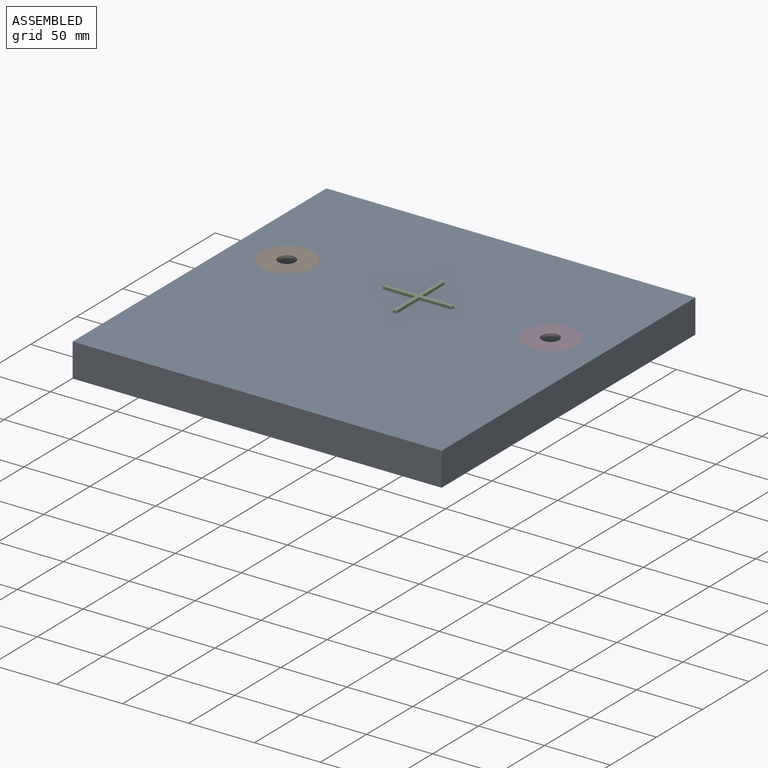
[diagram: assembled view]
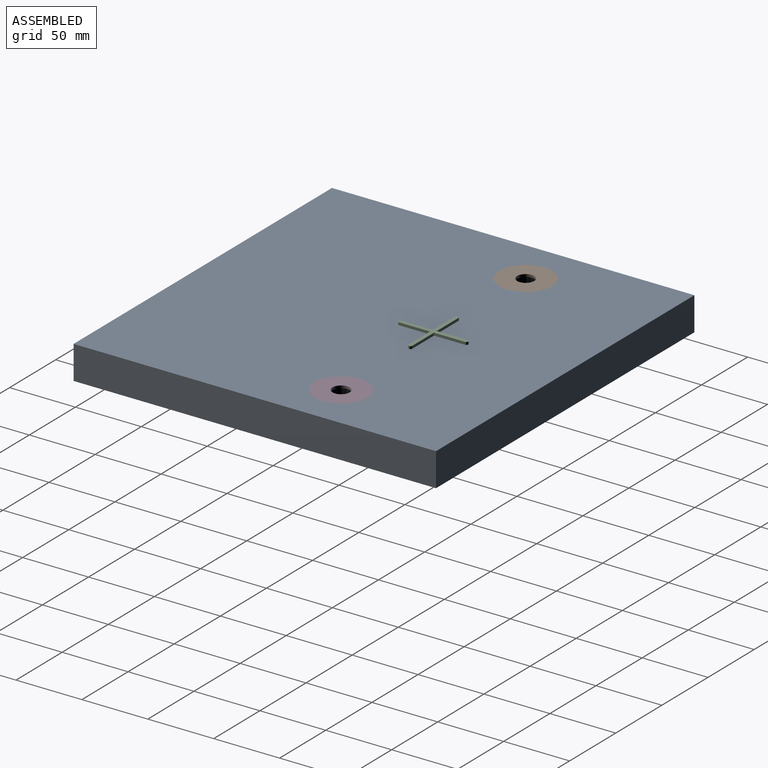
[diagram: assembled view, second angle]
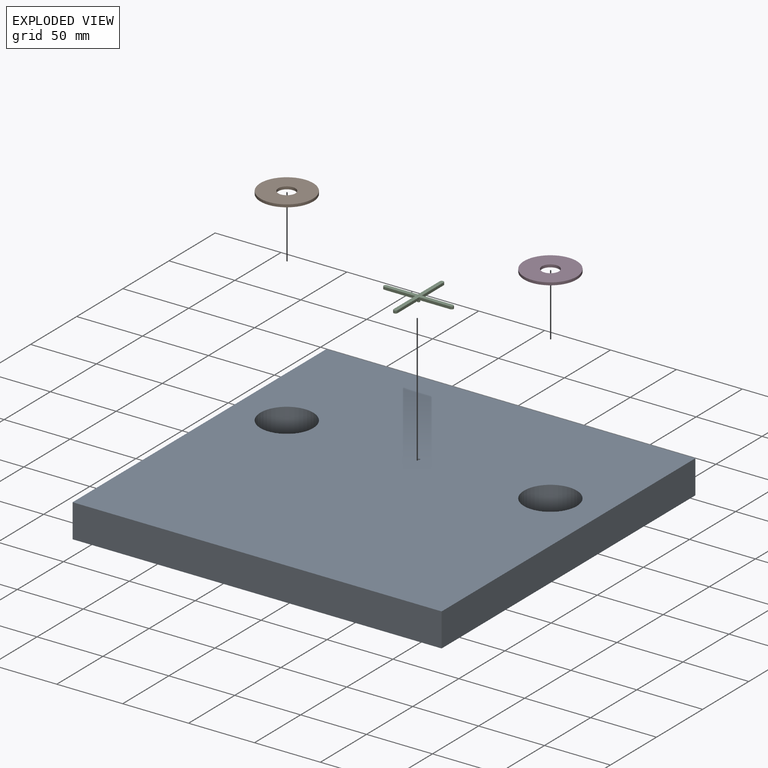
[diagram: exploded view]
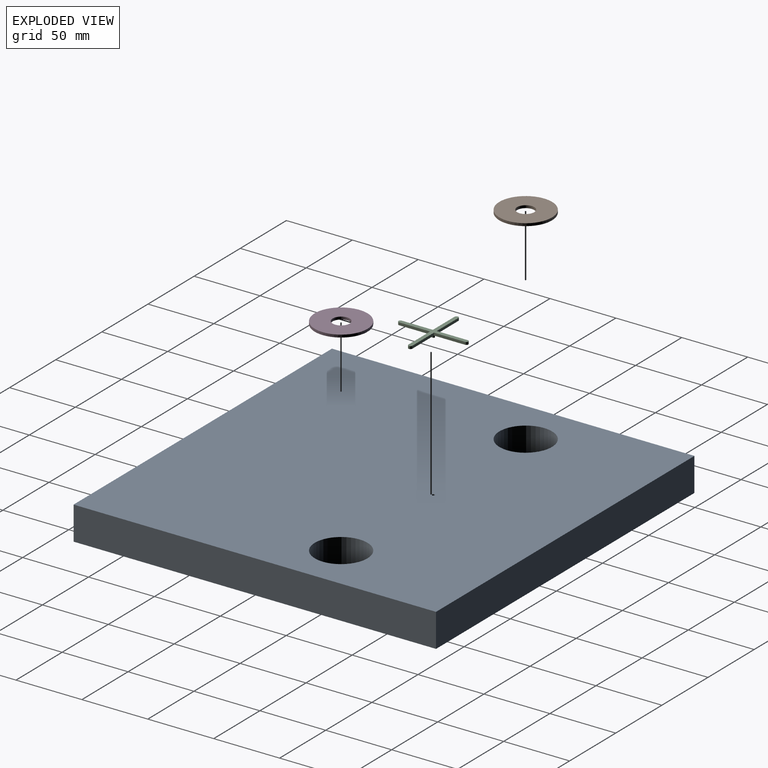
[diagram: exploded view, second angle]
ASSEMBLY  parts=4 mates=3
PART A: 9 faces, bbox 280x275x25.4 mm
  f0: plane 280x25.4mm, normal (0,-1,0), area 7112mm2, adj f1,f5,f7,f8
  f1: plane 275x25.4mm, normal (1,0,0), area 6985mm2, adj f0,f2,f7,f8
  f2: plane 280x25.4mm, normal (0,1,0), area 7112mm2, adj f1,f5,f7,f8
  f3: cylinder r=1mm len=25.4mm, axis (0,0,-1), area 159.6mm2, adj f7,f8
  f4: cylinder r=20mm len=40mm, axis (0,0,-1), area 3191.9mm2, adj f7,f8
  f5: plane 275x25.4mm, normal (-1,0,0), area 6985mm2, adj f0,f2,f7,f8
  f6: cylinder r=20mm len=40mm, axis (0,0,-1), area 3191.9mm2, adj f7,f8
  f7: plane 280x275mm, normal (0,0,1), area 74483.6mm2, adj f0,f1,f2,f3,f4,f5,f6
  f8: plane 280x275mm, normal (0,0,-1), area 74483.6mm2, adj f0,f1,f2,f3,f4,f5,f6
PART B: 4 faces, bbox 40x40x2 mm
  f0: cylinder r=6.5mm len=13mm, axis (0,0,-1), area 81.7mm2, adj f2,f3
  f1: cylinder r=20mm len=40mm, axis (0,0,-1), area 251.3mm2, adj f2,f3
  f2: plane 40x40mm, normal (0,0,1), area 1123.9mm2, adj f0,f1
  f3: plane 40x40mm, normal (0,0,-1), area 1123.9mm2, adj f0,f1
PART C: 16 faces, bbox 53x53x4 mm
  f0: plane 23.5x2mm, normal (0,1,0), area 47mm2, adj f1,f11,f12,f13
  f1: plane 23.5x2mm, normal (1,0,0), area 47mm2, adj f0,f2,f12,f13
  f2: cylinder r=1.5mm len=3mm, axis (0,0,-1), area 9.4mm2, adj f1,f3,f12,f13
  f3: plane 23.5x2mm, normal (-1,0,0), area 47mm2, adj f2,f4,f12,f13
  f4: plane 23.5x2mm, normal (0,1,0), area 47mm2, adj f3,f5,f12,f13
  f5: cylinder r=1.5mm len=3mm, axis (0,0,-1), area 9.4mm2, adj f4,f6,f12,f13
  f6: plane 23.5x2mm, normal (0,-1,0), area 47mm2, adj f5,f7,f12,f13
  f7: plane 23.5x2mm, normal (-1,0,0), area 47mm2, adj f6,f8,f12,f13
  f8: cylinder r=1.5mm len=3mm, axis (0,0,-1), area 9.4mm2, adj f7,f9,f12,f13
  f9: plane 23.5x2mm, normal (1,0,0), area 47mm2, adj f8,f10,f12,f13
  f10: plane 23.5x2mm, normal (0,-1,0), area 47mm2, adj f9,f11,f12,f13
  f11: cylinder r=1.5mm len=3mm, axis (0,0,-1), area 9.4mm2, adj f0,f10,f12,f13
  f12: plane 53x53mm, normal (0,0,1), area 305.1mm2, adj f0,f1,f2,f3,f4,f5,f6,f7
  f13: plane 53x53mm, normal (0,0,-1), area 302mm2, adj f0,f1,f2,f3,f4,f5,f6,f7
  f14: cylinder r=1mm len=2mm, axis (0,0,1), area 12.6mm2, adj f13,f15
  f15: plane 2x2mm, normal (0,0,-1), area 3.1mm2, adj f14
PART D: 4 faces, bbox 40x40x2 mm
  f0: cylinder r=6.5mm len=13mm, axis (0,0,-1), area 81.7mm2, adj f2,f3
  f1: cylinder r=20mm len=40mm, axis (0,0,-1), area 251.3mm2, adj f2,f3
  f2: plane 40x40mm, normal (0,0,1), area 1123.9mm2, adj f0,f1
  f3: plane 40x40mm, normal (0,0,-1), area 1123.9mm2, adj f0,f1
PLACE A t=(-6.92,-30.17,33.04)mm
PLACE B t=(133.08,144.83,56.44)mm
PLACE C t=(133.08,144.83,58.44)mm
PLACE D t=(133.08,144.83,56.44)mm
MATE fastened D.f1 <-> A.f6  axis (0,0,1) through (233.08,144.83,58.44)mm
MATE fastened C.f14 <-> A.f3  axis (0,0,-1) through (133.08,144.83,58.44)mm
MATE fastened B.f1 <-> A.f4  axis (0,0,1) through (33.08,144.83,58.44)mm
